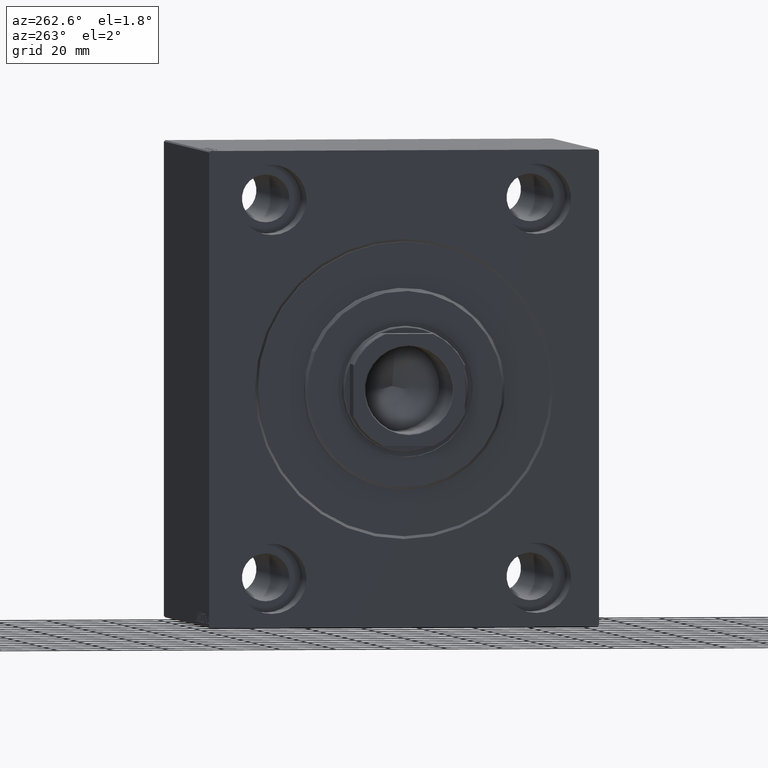
[diagram: clean part render]
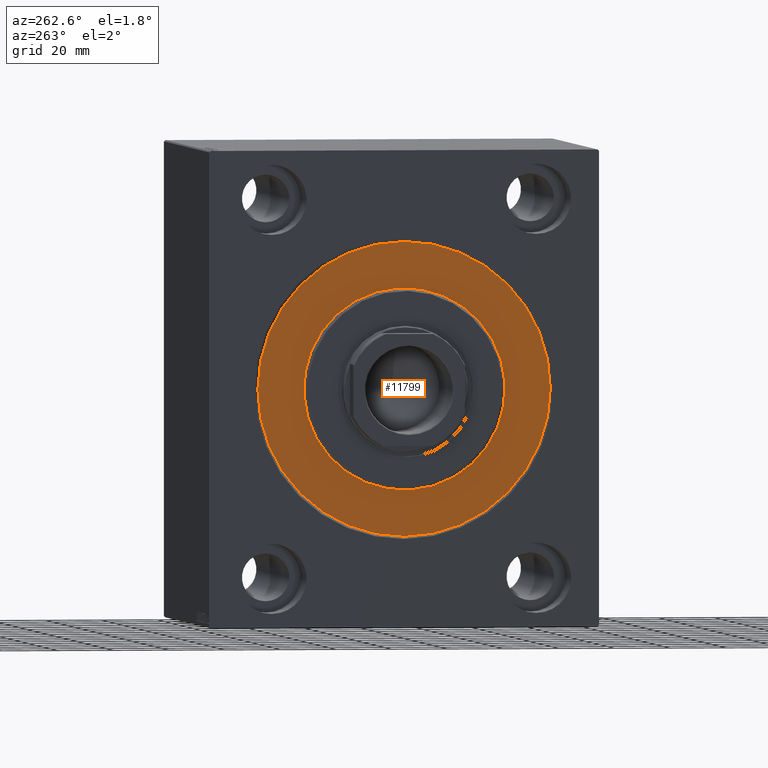
[diagram: same view with one face highlighted and labeled with its STEP entity id]
A machine part, auxiliary view. The second image highlights one B-rep face of the part: STEP entity #11799.
In plain terms, the highlighted planar face has unit normal (1, 0, -0).
Its self-contained STEP definition (entity closure, byte-faithful):
#982 = DIRECTION ( 'NONE',  ( -1.000000000000000000, 0.000000000000000000, 0.000000000000000000 ) ) ;
#1075 = CARTESIAN_POINT ( 'NONE',  ( 0.000000000000000000, 0.000000000000000000, 0.000000000000000000 ) ) ;
#1673 = CIRCLE ( 'NONE', #20163, 36.00000000000000000 ) ;
#1868 = VERTEX_POINT ( 'NONE', #41042 ) ;
#5078 = FACE_BOUND ( 'NONE', #21238, .T. ) ;
#5200 = DIRECTION ( 'NONE',  ( 0.000000000000000000, 0.000000000000000000, 1.000000000000000000 ) ) ;
#5799 = ORIENTED_EDGE ( 'NONE', *, *, #40900, .F. ) ;
#5861 = DIRECTION ( 'NONE',  ( 1.000000000000000000, -0.000000000000000000, 0.000000000000000000 ) ) ;
#7721 = VERTEX_POINT ( 'NONE', #43912 ) ;
#7990 = PLANE ( 'NONE',  #26170 ) ;
#11104 = CARTESIAN_POINT ( 'NONE',  ( 0.000000000000000000, 0.000000000000000000, 0.000000000000000000 ) ) ;
#11750 = EDGE_CURVE ( 'NONE', #1868, #7721, #13388, .T. ) ;
#11799 = ADVANCED_FACE ( 'NONE', ( #5078, #18652 ), #7990, .F. ) ;
#11967 = ORIENTED_EDGE ( 'NONE', *, *, #38203, .F. ) ;
#13228 = VERTEX_POINT ( 'NONE', #34951 ) ;
#13388 = CIRCLE ( 'NONE', #38289, 36.00000000000000000 ) ;
#14541 = CIRCLE ( 'NONE', #19507, 52.49999999999999289 ) ;
#14991 = CARTESIAN_POINT ( 'NONE',  ( 0.000000000000000000, 0.000000000000000000, 0.000000000000000000 ) ) ;
#16076 = DIRECTION ( 'NONE',  ( 0.000000000000000000, 0.000000000000000000, -1.000000000000000000 ) ) ;
#18211 = DIRECTION ( 'NONE',  ( 0.000000000000000000, 0.000000000000000000, 1.000000000000000000 ) ) ;
#18652 = FACE_OUTER_BOUND ( 'NONE', #36121, .T. ) ;
#19298 = CIRCLE ( 'NONE', #29975, 52.49999999999999289 ) ;
#19507 = AXIS2_PLACEMENT_3D ( 'NONE', #1075, #38054, #34930 ) ;
#20163 = AXIS2_PLACEMENT_3D ( 'NONE', #36133, #5861, #16076 ) ;
#21062 = EDGE_CURVE ( 'NONE', #23560, #13228, #19298, .T. ) ;
#21238 = EDGE_LOOP ( 'NONE', ( #22643, #11967 ) ) ;
#22643 = ORIENTED_EDGE ( 'NONE', *, *, #11750, .F. ) ;
#23560 = VERTEX_POINT ( 'NONE', #29891 ) ;
#25547 = DIRECTION ( 'NONE',  ( 1.000000000000000000, -0.000000000000000000, 0.000000000000000000 ) ) ;
#26170 = AXIS2_PLACEMENT_3D ( 'NONE', #11104, #28229, #18211 ) ;
#28229 = DIRECTION ( 'NONE',  ( -1.000000000000000000, 0.000000000000000000, 0.000000000000000000 ) ) ;
#28671 = CARTESIAN_POINT ( 'NONE',  ( 0.000000000000000000, 0.000000000000000000, 0.000000000000000000 ) ) ;
#29891 = CARTESIAN_POINT ( 'NONE',  ( 0.000000000000000000, 6.429395695523603167E-15, 52.49999999999999289 ) ) ;
#29975 = AXIS2_PLACEMENT_3D ( 'NONE', #14991, #982, #5200 ) ;
#34660 = ORIENTED_EDGE ( 'NONE', *, *, #21062, .F. ) ;
#34927 = DIRECTION ( 'NONE',  ( 0.000000000000000000, 0.000000000000000000, -1.000000000000000000 ) ) ;
#34930 = DIRECTION ( 'NONE',  ( 0.000000000000000000, 0.000000000000000000, 1.000000000000000000 ) ) ;
#34951 = CARTESIAN_POINT ( 'NONE',  ( 0.000000000000000000, 0.000000000000000000, -52.49999999999999289 ) ) ;
#36121 = EDGE_LOOP ( 'NONE', ( #5799, #34660 ) ) ;
#36133 = CARTESIAN_POINT ( 'NONE',  ( 0.000000000000000000, 0.000000000000000000, 0.000000000000000000 ) ) ;
#38054 = DIRECTION ( 'NONE',  ( -1.000000000000000000, 0.000000000000000000, 0.000000000000000000 ) ) ;
#38203 = EDGE_CURVE ( 'NONE', #7721, #1868, #1673, .T. ) ;
#38289 = AXIS2_PLACEMENT_3D ( 'NONE', #28671, #25547, #34927 ) ;
#40900 = EDGE_CURVE ( 'NONE', #13228, #23560, #14541, .T. ) ;
#41042 = CARTESIAN_POINT ( 'NONE',  ( 0.000000000000000000, 0.000000000000000000, 36.00000000000000000 ) ) ;
#43912 = CARTESIAN_POINT ( 'NONE',  ( 0.000000000000000000, 4.408728476930470856E-15, -36.00000000000000000 ) ) ;